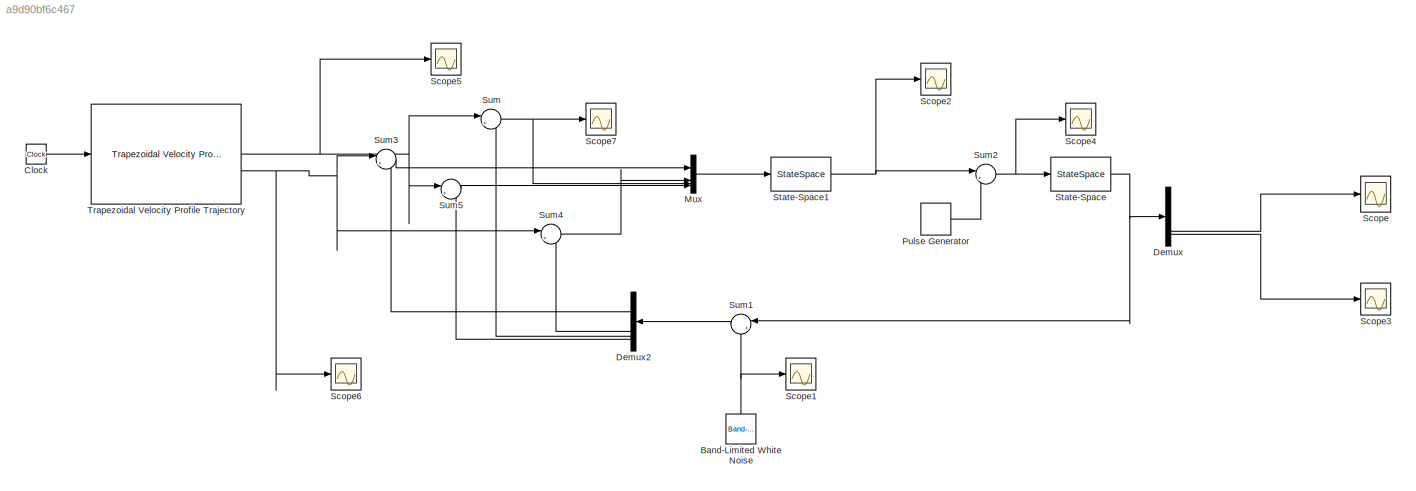
MODEL slx_a9d90bf6c467
KIND model
CONFIG AbsTol = auto
CONFIG EnableMultiTasking = off
CONFIG FixedStep = auto
CONFIG MaxStep = auto
CONFIG MinStep = auto
CONFIG RelTol = 1e-3
CONFIG SampleTimeConstraint = Unconstrained
CONFIG SolverName = VariableStepAuto
CONFIG StartTime = 0.0
CONFIG StopTime = 50
BLOCK [Reference] Band-Limited White Noise  REF=simulink/Sources/Band-Limited
White Noise
  NameLocation = right
  SourceBlock = simulink/Sources/Band-Limited\nWhite Noise
  SourceType = Band-Limited White Noise.
BLOCK [Clock] Clock
BLOCK [Demux] Demux
BLOCK [Demux] Demux2
  NameLocation = top
BLOCK [Mux] Mux
  DisplayOption = bar
BLOCK [DiscretePulseGenerator] Pulse Generator
  Amplitude = 0
  Period = 1/6
  PulseType = Time based
  PulseWidth = 50
BLOCK [Scope] Scope
  ActiveDisplayYMaximum = 1.63077
  ActiveDisplayYMinimum = -0.86532
  Floating = off
  GraphicalSettings = {"GraphicalSettings":{"LegacySettings":true,"Style":{"AxesScalingProperties":{"ScaleAxesLimitsAtStop":false},"Style":{"AxesColor":"[0 0 0]","ChannelNames":[""],"ColorOrder":"[1 1 0.0666666666666667;0.0745098039215686 0.623529411764706 1;1 0.411764705882353 0.16078431372549;0.392156862745098 0.831372549019608 0.0745098039215686;0.717647058823529 0.274509803921569 1;0.0588235294117647 1 1;1 0.074509...<+454ch>
  MultipleDisplayCache = [{"MaxYLimMag":1.63077,"MaxYLimReal":1.63077,"MinYLimMag":0,"MinYLimReal":-0.86532,"PlotAsMagnitudePhase":false,"ShowGrid":true,"ShowLegend":false,"Title":"%<SignalLabel>","YLabel":""}]
  NumInputPorts = 1
  ScopeFrameLocation = window
  Visible = on
  WasSavedAsWebScope = on
  WindowPosition = [513.000000,111.000000,510.000000,642.000000,]
BLOCK [Scope] Scope1
  ActiveDisplayYMaximum = 0.3929
  ActiveDisplayYMinimum = -0.44423
  DataLoggingVariableName = ScopeData1
  Floating = off
  GraphicalSettings = {"GraphicalSettings":{"LegacySettings":true,"Style":{"Style":{"AxesColor":"[0 0 0]","ChannelNames":[""],"ColorOrder":"[1 1 0.0666666666666667;0.0745098039215686 0.623529411764706 1;1 0.411764705882353 0.16078431372549;0.392156862745098 0.831372549019608 0.0745098039215686;0.717647058823529 0.274509803921569 1;0.0588235294117647 1 1;1 0.0745098039215686 0.650980392156863]","CurrentConfiguration":"e...<+343ch>  <repeated x3 — deduplicated; at blocks: Scope1, Scope5, Scope6>
  MultipleDisplayCache = [{"MaxYLimMag":0.44423,"MaxYLimReal":0.3929,"MinYLimMag":0,"MinYLimReal":-0.44423,"PlotAsMagnitudePhase":false,"ShowGrid":true,"ShowLegend":false,"Title":"%<SignalLabel>","YLabel":""}]
  NumInputPorts = 1
  WasSavedAsWebScope = on
BLOCK [Scope] Scope2
  ActiveDisplayYMaximum = 0.4539
  ActiveDisplayYMinimum = -0.42893
  DataLoggingVariableName = ScopeData2
  Floating = off
  GraphicalSettings = {"GraphicalSettings":{"LegacySettings":true,"Style":{"Style":{"AxesColor":"[0 0 0]","ChannelNames":[""],"ColorOrder":"[1 1 0.0666666666666667;0.0745098039215686 0.623529411764706 1;1 0.411764705882353 0.16078431372549;0.392156862745098 0.831372549019608 0.0745098039215686;0.717647058823529 0.274509803921569 1;0.0588235294117647 1 1;1 0.0745098039215686 0.650980392156863]","CurrentConfiguration":"e...<+371ch>
  MultipleDisplayCache = [{"MaxYLimMag":0.4539,"MaxYLimReal":0.4539,"MinYLimMag":0,"MinYLimReal":-0.42893,"PlotAsMagnitudePhase":false,"ShowGrid":true,"ShowLegend":false,"Title":"%<SignalLabel>","YLabel":""}]
  NumInputPorts = 1
  ScopeFrameLocation = window
  Visible = on
  WasSavedAsWebScope = on
  WindowPosition = [488.000000,222.000000,560.000000,420.000000,]
BLOCK [Scope] Scope3
  ActiveDisplayYMaximum = 1.18631
  ActiveDisplayYMinimum = -0.1749
  DataLoggingVariableName = ScopeData1
  Floating = off
  GraphicalSettings = {"GraphicalSettings":{"LegacySettings":true,"Style":{"Style":{"AxesColor":"[0 0 0]","ChannelNames":[""],"ColorOrder":"[1 1 0.0666666666666667;0.0745098039215686 0.623529411764706 1;1 0.411764705882353 0.16078431372549;0.392156862745098 0.831372549019608 0.0745098039215686;0.717647058823529 0.274509803921569 1;0.0588235294117647 1 1;1 0.0745098039215686 0.650980392156863]","CurrentConfiguration":"e...<+368ch>
  MultipleDisplayCache = [{"MaxYLimMag":1.18631,"MaxYLimReal":1.18631,"MinYLimMag":0,"MinYLimReal":-0.1749,"PlotAsMagnitudePhase":false,"ShowGrid":true,"ShowLegend":false,"Title":"%<SignalLabel>","YLabel":""}]
  NumInputPorts = 1
  ScopeFrameLocation = window
  Visible = on
  WasSavedAsWebScope = on
  WindowPosition = [1368.000000,42.000000,510.000000,642.000000,]
BLOCK [Scope] Scope4
  ActiveDisplayYMaximum = 13.17821
  ActiveDisplayYMinimum = -13.03819
  DataLoggingVariableName = ScopeData2
  Floating = off
  GraphicalSettings = {"GraphicalSettings":{"LegacySettings":true,"Style":{"Style":{"AxesColor":"[0 0 0]","ChannelNames":[""],"ColorOrder":"[1 1 0.0666666666666667;0.0745098039215686 0.623529411764706 1;1 0.411764705882353 0.16078431372549;0.392156862745098 0.831372549019608 0.0745098039215686;0.717647058823529 0.274509803921569 1;0.0588235294117647 1 1;1 0.0745098039215686 0.650980392156863]","CurrentConfiguration":"e...<+346ch>
  MultipleDisplayCache = [{"MaxYLimMag":13.17821,"MaxYLimReal":13.17821,"MinYLimMag":0,"MinYLimReal":-13.03819,"PlotAsMagnitudePhase":false,"ShowGrid":true,"ShowLegend":false,"Title":"%<SignalLabel>","YLabel":""}]
  NumInputPorts = 1
  WasSavedAsWebScope = on
BLOCK [Scope] Scope5
  ActiveDisplayYMaximum = 1.125
  ActiveDisplayYMinimum = -0.125
  DataLoggingVariableName = ScopeData1
  Floating = off
  MultipleDisplayCache = [{"MaxYLimMag":1.125,"MaxYLimReal":1.125,"MinYLimMag":0,"MinYLimReal":-0.125,"PlotAsMagnitudePhase":false,"ShowGrid":true,"ShowLegend":false,"Title":"%<SignalLabel>","YLabel":""}]
  NumInputPorts = 1
  WasSavedAsWebScope = on
BLOCK [Scope] Scope6
  ActiveDisplayYMaximum = 1.6875
  ActiveDisplayYMinimum = -0.1875
  DataLoggingVariableName = ScopeData2
  Floating = off
  MultipleDisplayCache = [{"MaxYLimMag":1.6875,"MaxYLimReal":1.6875,"MinYLimMag":0,"MinYLimReal":-0.1875,"PlotAsMagnitudePhase":false,"ShowGrid":true,"ShowLegend":false,"Title":"%<SignalLabel>","YLabel":""}]
  NumInputPorts = 1
  WasSavedAsWebScope = on
BLOCK [Scope] Scope7
  DataLoggingVariableName = ScopeData3
  Floating = off
  GraphicalSettings = {"GraphicalSettings":{"LegacySettings":true,"Style":{"Style":{"CurrentConfiguration":"extmgr.ConfigurationSet","MinimizeControls":"false","PlotType":"Auto","Version":"2022a"}}}}
  NumInputPorts = 1
  WasSavedAsWebScope = on
BLOCK [StateSpace] State-Space
  A = A_LD
  B = B_LD
  C = C_LD
  D = D_LD
  InitialCondition = []
  ParameterTunability = Unconstrained
BLOCK [StateSpace] State-Space1
  A = A_LD
  B = B_LD
  C = C_LD
  D = D_LD
  InitialCondition = 0
  ParameterTunability = Unconstrained
BLOCK [Sum] Sum
  Inputs = |+-
BLOCK [Sum] Sum1
  Inputs = |++
  NameLocation = top
BLOCK [Sum] Sum2
  Inputs = |++
BLOCK [Sum] Sum3
  Inputs = |+-
BLOCK [Sum] Sum4
  Inputs = |+-
BLOCK [Sum] Sum5
  Inputs = |+-
BLOCK [Reference] Trapezoidal Velocity Profile Trajectory  REF=robotcorelib/Trapezoidal Velocity Profile Trajectory
  SourceBlock = robotcorelib/Trapezoidal Velocity Profile Trajectory
  SourceType = robotics.slcore.internal.block.TrapVelTrajSys
NET Band-Limited White Noise:1 -> Scope1:1, Sum1:2
LINE Clock:1 -> Trapezoidal Velocity Profile Trajectory:1
LINE Demux2:1 -> Sum3:2
LINE Demux2:2 -> Sum4:2
LINE Demux2:3 -> Sum:2
LINE Demux2:4 -> Sum5:2
LINE Demux:3 -> Scope:1
LINE Demux:4 -> Scope3:1
LINE Mux:1 -> State-Space1:1
LINE Pulse Generator:1 -> Sum2:2
NET State-Space1:1 -> Scope2:1, Sum2:1
NET State-Space:1 -> Demux:1, Sum1:1
LINE Sum1:1 -> Demux2:1
NET Sum2:1 -> Scope4:1, State-Space:1
LINE Sum3:1 -> Mux:1
LINE Sum4:1 -> Mux:2
LINE Sum5:1 -> Mux:4
NET Sum:1 -> Mux:3, Scope7:1
NET Trapezoidal Velocity Profile Trajectory:1 -> Scope5:1, Sum5:1, Sum:1
NET Trapezoidal Velocity Profile Trajectory:2 -> Scope6:1, Sum3:1, Sum4:1
note: NET lines group one-source signal fan-out (src -> all destinations, sorted); 1:1 wires keep LINE
